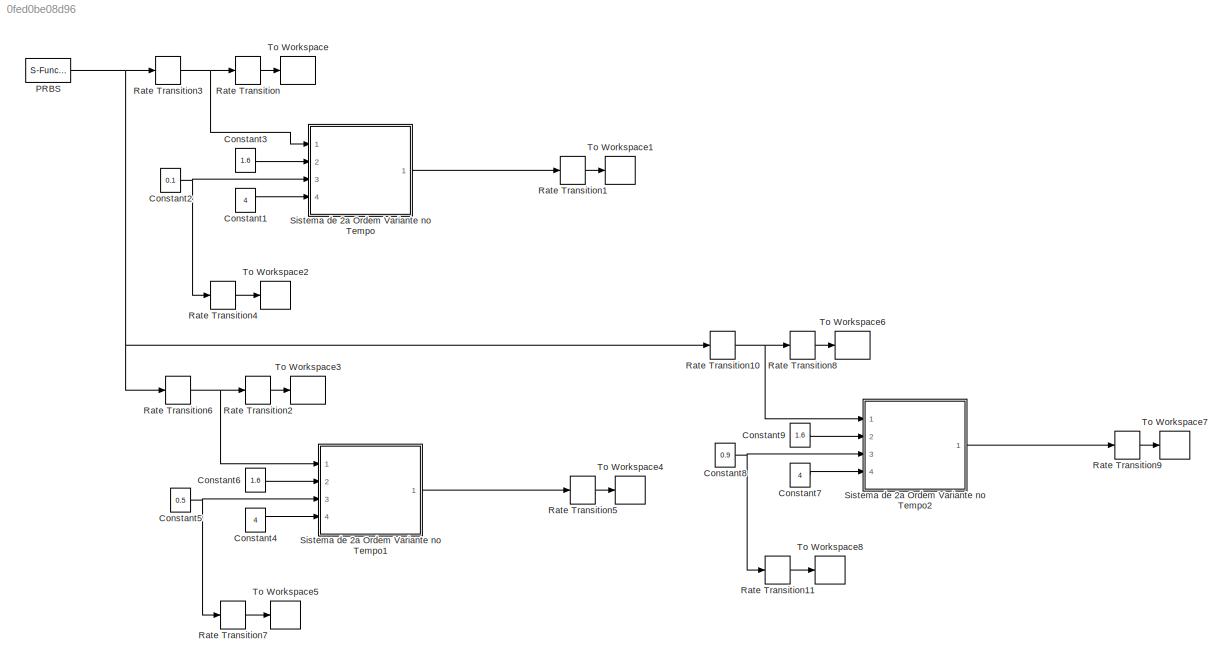
MODEL slx_0fed0be08d96
KIND model
CONFIG AbsTol = auto
CONFIG FixedStep = 0.005
CONFIG MaxStep = auto
CONFIG MinStep = auto
CONFIG RelTol = 1e-3
CONFIG SampleTimeConstraint = Unconstrained
CONFIG Solver = ode4
CONFIG SolverMode = Auto
CONFIG SolverName = ode4
CONFIG StartTime = 0.0
CONFIG StopTime = 120
BLOCK [Constant] Constant1
  Value = 4
BLOCK [Constant] Constant2
  Value = 0.1
BLOCK [Constant] Constant3
  Value = 1.6
BLOCK [Constant] Constant4
  Value = 4
BLOCK [Constant] Constant5
  Value = 0.5
BLOCK [Constant] Constant6
  Value = 1.6
BLOCK [Constant] Constant7
  Value = 4
BLOCK [Constant] Constant8
  Value = 0.9
BLOCK [Constant] Constant9
  Value = 1.6
BLOCK [S-Function] PRBS
  EnableBusSupport = off
  FunctionName = sf_prbs
  Parameters = K,N,Ts
  Ports = [0, 1]
  SFunctionDeploymentMode = off
BLOCK [RateTransition] Rate Transition
BLOCK [RateTransition] Rate Transition1
BLOCK [RateTransition] Rate Transition10
BLOCK [RateTransition] Rate Transition11
  X0 = 0.05
BLOCK [RateTransition] Rate Transition2
BLOCK [RateTransition] Rate Transition3
BLOCK [RateTransition] Rate Transition4
  X0 = 0.05
BLOCK [RateTransition] Rate Transition5
BLOCK [RateTransition] Rate Transition6
BLOCK [RateTransition] Rate Transition7
  X0 = 0.05
BLOCK [RateTransition] Rate Transition8
BLOCK [RateTransition] Rate Transition9
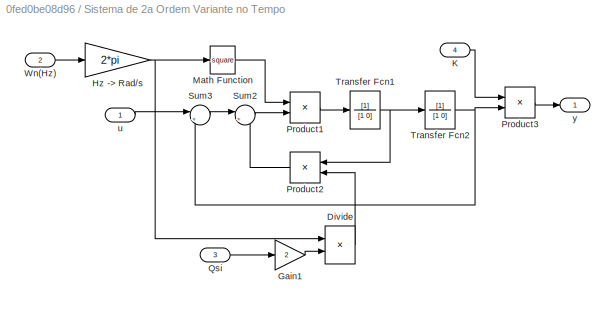
BLOCK [SubSystem] Sistema de 2a Ordem Variante no Tempo
  Ports = [4, 1]
  RequestExecContextInheritance = off
  Variant = off
BLOCK [Product] Sistema de 2a Ordem Variante no Tempo/Divide
  InputSameDT = off
  Inputs = /*
  OutDataTypeStr = Inherit: Inherit via internal rule
  Ports = [2, 1]
  RndMeth = Floor
  SaturateOnIntegerOverflow = off
BLOCK [Gain] Sistema de 2a Ordem Variante no Tempo/Gain1
  Gain = 2
  OutDataTypeStr = Inherit: Inherit via internal rule
  ParamDataTypeStr = Inherit: Inherit via internal rule
  SaturateOnIntegerOverflow = off
BLOCK [Gain] Sistema de 2a Ordem Variante no Tempo/Hz -> Rad//s
  Gain = 2*pi
  OutDataTypeStr = Inherit: Inherit via internal rule
  ParamDataTypeStr = Inherit: Inherit via internal rule
  SaturateOnIntegerOverflow = off
BLOCK [Inport] Sistema de 2a Ordem Variante no Tempo/K
  IconDisplay = Port number
  Port = 4
BLOCK [Math] Sistema de 2a Ordem Variante no Tempo/Math Function
  Operator = square
  Ports = [1, 1]
BLOCK [Product] Sistema de 2a Ordem Variante no Tempo/Product1
  InputSameDT = off
  OutDataTypeStr = Inherit: Inherit via internal rule
  Ports = [2, 1]
  SaturateOnIntegerOverflow = off
BLOCK [Product] Sistema de 2a Ordem Variante no Tempo/Product2
  InputSameDT = off
  OutDataTypeStr = Inherit: Inherit via internal rule
  Ports = [2, 1]
  SaturateOnIntegerOverflow = off
BLOCK [Product] Sistema de 2a Ordem Variante no Tempo/Product3
  InputSameDT = off
  OutDataTypeStr = Inherit: Inherit via internal rule
  Ports = [2, 1]
  SaturateOnIntegerOverflow = off
BLOCK [Inport] Sistema de 2a Ordem Variante no Tempo/Qsi
  IconDisplay = Port number
  Port = 3
BLOCK [Sum] Sistema de 2a Ordem Variante no Tempo/Sum2
  IconShape = round
  InputSameDT = off
  Inputs = |+-
  OutDataTypeStr = Inherit: Inherit via internal rule
  Ports = [2, 1]
  SaturateOnIntegerOverflow = off
BLOCK [Sum] Sistema de 2a Ordem Variante no Tempo/Sum3
  IconShape = round
  InputSameDT = off
  Inputs = |+-
  OutDataTypeStr = Inherit: Inherit via internal rule
  Ports = [2, 1]
  SaturateOnIntegerOverflow = off
BLOCK [TransferFcn] Sistema de 2a Ordem Variante no Tempo/Transfer Fcn1
  Denominator = [1 0]
BLOCK [TransferFcn] Sistema de 2a Ordem Variante no Tempo/Transfer Fcn2
  Denominator = [1 0]
BLOCK [Inport] Sistema de 2a Ordem Variante no Tempo/Wn(Hz)
  IconDisplay = Port number
  Port = 2
BLOCK [Inport] Sistema de 2a Ordem Variante no Tempo/u
  IconDisplay = Port number
BLOCK [Outport] Sistema de 2a Ordem Variante no Tempo/y
  IconDisplay = Port number
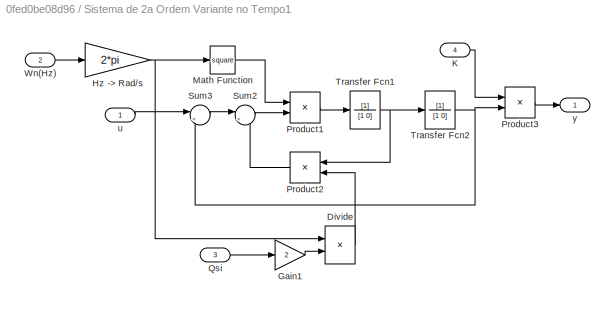
BLOCK [SubSystem] Sistema de 2a Ordem Variante no Tempo1
  Ports = [4, 1]
  RequestExecContextInheritance = off
  Variant = off
BLOCK [Product] Sistema de 2a Ordem Variante no Tempo1/Divide
  InputSameDT = off
  Inputs = /*
  OutDataTypeStr = Inherit: Inherit via internal rule
  Ports = [2, 1]
  RndMeth = Floor
  SaturateOnIntegerOverflow = off
BLOCK [Gain] Sistema de 2a Ordem Variante no Tempo1/Gain1
  Gain = 2
  OutDataTypeStr = Inherit: Inherit via internal rule
  ParamDataTypeStr = Inherit: Inherit via internal rule
  SaturateOnIntegerOverflow = off
BLOCK [Gain] Sistema de 2a Ordem Variante no Tempo1/Hz -> Rad//s
  Gain = 2*pi
  OutDataTypeStr = Inherit: Inherit via internal rule
  ParamDataTypeStr = Inherit: Inherit via internal rule
  SaturateOnIntegerOverflow = off
BLOCK [Inport] Sistema de 2a Ordem Variante no Tempo1/K
  IconDisplay = Port number
  Port = 4
BLOCK [Math] Sistema de 2a Ordem Variante no Tempo1/Math Function
  Operator = square
  Ports = [1, 1]
BLOCK [Product] Sistema de 2a Ordem Variante no Tempo1/Product1
  InputSameDT = off
  OutDataTypeStr = Inherit: Inherit via internal rule
  Ports = [2, 1]
  SaturateOnIntegerOverflow = off
BLOCK [Product] Sistema de 2a Ordem Variante no Tempo1/Product2
  InputSameDT = off
  OutDataTypeStr = Inherit: Inherit via internal rule
  Ports = [2, 1]
  SaturateOnIntegerOverflow = off
BLOCK [Product] Sistema de 2a Ordem Variante no Tempo1/Product3
  InputSameDT = off
  OutDataTypeStr = Inherit: Inherit via internal rule
  Ports = [2, 1]
  SaturateOnIntegerOverflow = off
BLOCK [Inport] Sistema de 2a Ordem Variante no Tempo1/Qsi
  IconDisplay = Port number
  Port = 3
BLOCK [Sum] Sistema de 2a Ordem Variante no Tempo1/Sum2
  IconShape = round
  InputSameDT = off
  Inputs = |+-
  OutDataTypeStr = Inherit: Inherit via internal rule
  Ports = [2, 1]
  SaturateOnIntegerOverflow = off
BLOCK [Sum] Sistema de 2a Ordem Variante no Tempo1/Sum3
  IconShape = round
  InputSameDT = off
  Inputs = |+-
  OutDataTypeStr = Inherit: Inherit via internal rule
  Ports = [2, 1]
  SaturateOnIntegerOverflow = off
BLOCK [TransferFcn] Sistema de 2a Ordem Variante no Tempo1/Transfer Fcn1
  Denominator = [1 0]
BLOCK [TransferFcn] Sistema de 2a Ordem Variante no Tempo1/Transfer Fcn2
  Denominator = [1 0]
BLOCK [Inport] Sistema de 2a Ordem Variante no Tempo1/Wn(Hz)
  IconDisplay = Port number
  Port = 2
BLOCK [Inport] Sistema de 2a Ordem Variante no Tempo1/u
  IconDisplay = Port number
BLOCK [Outport] Sistema de 2a Ordem Variante no Tempo1/y
  IconDisplay = Port number
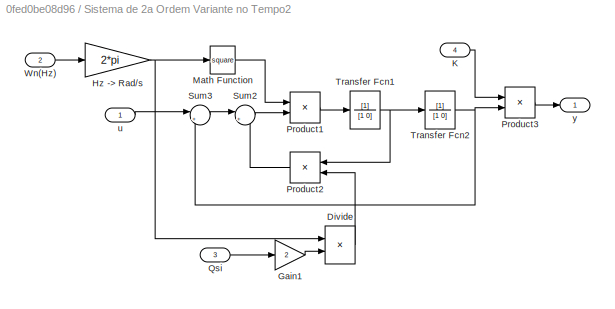
BLOCK [SubSystem] Sistema de 2a Ordem Variante no Tempo2
  Ports = [4, 1]
  RequestExecContextInheritance = off
  Variant = off
BLOCK [Product] Sistema de 2a Ordem Variante no Tempo2/Divide
  InputSameDT = off
  Inputs = /*
  OutDataTypeStr = Inherit: Inherit via internal rule
  Ports = [2, 1]
  RndMeth = Floor
  SaturateOnIntegerOverflow = off
BLOCK [Gain] Sistema de 2a Ordem Variante no Tempo2/Gain1
  Gain = 2
  OutDataTypeStr = Inherit: Inherit via internal rule
  ParamDataTypeStr = Inherit: Inherit via internal rule
  SaturateOnIntegerOverflow = off
BLOCK [Gain] Sistema de 2a Ordem Variante no Tempo2/Hz -> Rad//s
  Gain = 2*pi
  OutDataTypeStr = Inherit: Inherit via internal rule
  ParamDataTypeStr = Inherit: Inherit via internal rule
  SaturateOnIntegerOverflow = off
BLOCK [Inport] Sistema de 2a Ordem Variante no Tempo2/K
  IconDisplay = Port number
  Port = 4
BLOCK [Math] Sistema de 2a Ordem Variante no Tempo2/Math Function
  Operator = square
  Ports = [1, 1]
BLOCK [Product] Sistema de 2a Ordem Variante no Tempo2/Product1
  InputSameDT = off
  OutDataTypeStr = Inherit: Inherit via internal rule
  Ports = [2, 1]
  SaturateOnIntegerOverflow = off
BLOCK [Product] Sistema de 2a Ordem Variante no Tempo2/Product2
  InputSameDT = off
  OutDataTypeStr = Inherit: Inherit via internal rule
  Ports = [2, 1]
  SaturateOnIntegerOverflow = off
BLOCK [Product] Sistema de 2a Ordem Variante no Tempo2/Product3
  InputSameDT = off
  OutDataTypeStr = Inherit: Inherit via internal rule
  Ports = [2, 1]
  SaturateOnIntegerOverflow = off
BLOCK [Inport] Sistema de 2a Ordem Variante no Tempo2/Qsi
  IconDisplay = Port number
  Port = 3
BLOCK [Sum] Sistema de 2a Ordem Variante no Tempo2/Sum2
  IconShape = round
  InputSameDT = off
  Inputs = |+-
  OutDataTypeStr = Inherit: Inherit via internal rule
  Ports = [2, 1]
  SaturateOnIntegerOverflow = off
BLOCK [Sum] Sistema de 2a Ordem Variante no Tempo2/Sum3
  IconShape = round
  InputSameDT = off
  Inputs = |+-
  OutDataTypeStr = Inherit: Inherit via internal rule
  Ports = [2, 1]
  SaturateOnIntegerOverflow = off
BLOCK [TransferFcn] Sistema de 2a Ordem Variante no Tempo2/Transfer Fcn1
  Denominator = [1 0]
BLOCK [TransferFcn] Sistema de 2a Ordem Variante no Tempo2/Transfer Fcn2
  Denominator = [1 0]
BLOCK [Inport] Sistema de 2a Ordem Variante no Tempo2/Wn(Hz)
  IconDisplay = Port number
  Port = 2
BLOCK [Inport] Sistema de 2a Ordem Variante no Tempo2/u
  IconDisplay = Port number
BLOCK [Outport] Sistema de 2a Ordem Variante no Tempo2/y
  IconDisplay = Port number
BLOCK [ToWorkspace] To Workspace
  MaxDataPoints = inf
  Ports = [1]
  SampleTime = 0.05
  VariableName = umin
BLOCK [ToWorkspace] To Workspace1
  MaxDataPoints = inf
  Ports = [1]
  SampleTime = 0.05
  VariableName = ymin
BLOCK [ToWorkspace] To Workspace2
  MaxDataPoints = inf
  Ports = [1]
  SampleTime = 0.05
  VariableName = pmin
BLOCK [ToWorkspace] To Workspace3
  MaxDataPoints = inf
  Ports = [1]
  SampleTime = 0.05
  VariableName = umed
BLOCK [ToWorkspace] To Workspace4
  MaxDataPoints = inf
  Ports = [1]
  SampleTime = 0.05
  VariableName = ymed
BLOCK [ToWorkspace] To Workspace5
  MaxDataPoints = inf
  Ports = [1]
  SampleTime = 0.05
  VariableName = pmed
BLOCK [ToWorkspace] To Workspace6
  MaxDataPoints = inf
  Ports = [1]
  SampleTime = 0.05
  VariableName = umax
BLOCK [ToWorkspace] To Workspace7
  MaxDataPoints = inf
  Ports = [1]
  SampleTime = 0.05
  VariableName = ymax
BLOCK [ToWorkspace] To Workspace8
  MaxDataPoints = inf
  Ports = [1]
  SampleTime = 0.05
  VariableName = pmax
LINE Constant1:1 -> Sistema de 2a Ordem Variante no Tempo:4
NET Constant2:1 -> Rate Transition4:1, Sistema de 2a Ordem Variante no Tempo:3
LINE Constant3:1 -> Sistema de 2a Ordem Variante no Tempo:2
LINE Constant4:1 -> Sistema de 2a Ordem Variante no Tempo1:4
NET Constant5:1 -> Rate Transition7:1, Sistema de 2a Ordem Variante no Tempo1:3
LINE Constant6:1 -> Sistema de 2a Ordem Variante no Tempo1:2
LINE Constant7:1 -> Sistema de 2a Ordem Variante no Tempo2:4
NET Constant8:1 -> Rate Transition11:1, Sistema de 2a Ordem Variante no Tempo2:3
LINE Constant9:1 -> Sistema de 2a Ordem Variante no Tempo2:2
NET PRBS:1 -> Rate Transition10:1, Rate Transition3:1, Rate Transition6:1
NET Rate Transition10:1 -> Rate Transition8:1, Sistema de 2a Ordem Variante no Tempo2:1
LINE Rate Transition11:1 -> To Workspace8:1
LINE Rate Transition1:1 -> To Workspace1:1
LINE Rate Transition2:1 -> To Workspace3:1
NET Rate Transition3:1 -> Rate Transition:1, Sistema de 2a Ordem Variante no Tempo:1
LINE Rate Transition4:1 -> To Workspace2:1
LINE Rate Transition5:1 -> To Workspace4:1
NET Rate Transition6:1 -> Rate Transition2:1, Sistema de 2a Ordem Variante no Tempo1:1
LINE Rate Transition7:1 -> To Workspace5:1
LINE Rate Transition8:1 -> To Workspace6:1
LINE Rate Transition9:1 -> To Workspace7:1
LINE Rate Transition:1 -> To Workspace:1
LINE Sistema de 2a Ordem Variante no Tempo/Divide:1 -> Sistema de 2a Ordem Variante no Tempo/Product2:2
LINE Sistema de 2a Ordem Variante no Tempo/Gain1:1 -> Sistema de 2a Ordem Variante no Tempo/Divide:2
NET Sistema de 2a Ordem Variante no Tempo/Hz -> Rad//s:1 -> Sistema de 2a Ordem Variante no Tempo/Divide:1, Sistema de 2a Ordem Variante no Tempo/Math Function:1
LINE Sistema de 2a Ordem Variante no Tempo/K:1 -> Sistema de 2a Ordem Variante no Tempo/Product3:1
LINE Sistema de 2a Ordem Variante no Tempo/Math Function:1 -> Sistema de 2a Ordem Variante no Tempo/Product1:1
LINE Sistema de 2a Ordem Variante no Tempo/Product1:1 -> Sistema de 2a Ordem Variante no Tempo/Transfer Fcn1:1
LINE Sistema de 2a Ordem Variante no Tempo/Product2:1 -> Sistema de 2a Ordem Variante no Tempo/Sum2:2
LINE Sistema de 2a Ordem Variante no Tempo/Product3:1 -> Sistema de 2a Ordem Variante no Tempo/y:1
LINE Sistema de 2a Ordem Variante no Tempo/Qsi:1 -> Sistema de 2a Ordem Variante no Tempo/Gain1:1
LINE Sistema de 2a Ordem Variante no Tempo/Sum2:1 -> Sistema de 2a Ordem Variante no Tempo/Product1:2
LINE Sistema de 2a Ordem Variante no Tempo/Sum3:1 -> Sistema de 2a Ordem Variante no Tempo/Sum2:1
NET Sistema de 2a Ordem Variante no Tempo/Transfer Fcn1:1 -> Sistema de 2a Ordem Variante no Tempo/Product2:1, Sistema de 2a Ordem Variante no Tempo/Transfer Fcn2:1
NET Sistema de 2a Ordem Variante no Tempo/Transfer Fcn2:1 -> Sistema de 2a Ordem Variante no Tempo/Product3:2, Sistema de 2a Ordem Variante no Tempo/Sum3:2
LINE Sistema de 2a Ordem Variante no Tempo/Wn(Hz):1 -> Sistema de 2a Ordem Variante no Tempo/Hz -> Rad//s:1
LINE Sistema de 2a Ordem Variante no Tempo/u:1 -> Sistema de 2a Ordem Variante no Tempo/Sum3:1
LINE Sistema de 2a Ordem Variante no Tempo1/Divide:1 -> Sistema de 2a Ordem Variante no Tempo1/Product2:2
LINE Sistema de 2a Ordem Variante no Tempo1/Gain1:1 -> Sistema de 2a Ordem Variante no Tempo1/Divide:2
NET Sistema de 2a Ordem Variante no Tempo1/Hz -> Rad//s:1 -> Sistema de 2a Ordem Variante no Tempo1/Divide:1, Sistema de 2a Ordem Variante no Tempo1/Math Function:1
LINE Sistema de 2a Ordem Variante no Tempo1/K:1 -> Sistema de 2a Ordem Variante no Tempo1/Product3:1
LINE Sistema de 2a Ordem Variante no Tempo1/Math Function:1 -> Sistema de 2a Ordem Variante no Tempo1/Product1:1
LINE Sistema de 2a Ordem Variante no Tempo1/Product1:1 -> Sistema de 2a Ordem Variante no Tempo1/Transfer Fcn1:1
LINE Sistema de 2a Ordem Variante no Tempo1/Product2:1 -> Sistema de 2a Ordem Variante no Tempo1/Sum2:2
LINE Sistema de 2a Ordem Variante no Tempo1/Product3:1 -> Sistema de 2a Ordem Variante no Tempo1/y:1
LINE Sistema de 2a Ordem Variante no Tempo1/Qsi:1 -> Sistema de 2a Ordem Variante no Tempo1/Gain1:1
LINE Sistema de 2a Ordem Variante no Tempo1/Sum2:1 -> Sistema de 2a Ordem Variante no Tempo1/Product1:2
LINE Sistema de 2a Ordem Variante no Tempo1/Sum3:1 -> Sistema de 2a Ordem Variante no Tempo1/Sum2:1
NET Sistema de 2a Ordem Variante no Tempo1/Transfer Fcn1:1 -> Sistema de 2a Ordem Variante no Tempo1/Product2:1, Sistema de 2a Ordem Variante no Tempo1/Transfer Fcn2:1
NET Sistema de 2a Ordem Variante no Tempo1/Transfer Fcn2:1 -> Sistema de 2a Ordem Variante no Tempo1/Product3:2, Sistema de 2a Ordem Variante no Tempo1/Sum3:2
LINE Sistema de 2a Ordem Variante no Tempo1/Wn(Hz):1 -> Sistema de 2a Ordem Variante no Tempo1/Hz -> Rad//s:1
LINE Sistema de 2a Ordem Variante no Tempo1/u:1 -> Sistema de 2a Ordem Variante no Tempo1/Sum3:1
LINE Sistema de 2a Ordem Variante no Tempo1:1 -> Rate Transition5:1
LINE Sistema de 2a Ordem Variante no Tempo2/Divide:1 -> Sistema de 2a Ordem Variante no Tempo2/Product2:2
LINE Sistema de 2a Ordem Variante no Tempo2/Gain1:1 -> Sistema de 2a Ordem Variante no Tempo2/Divide:2
NET Sistema de 2a Ordem Variante no Tempo2/Hz -> Rad//s:1 -> Sistema de 2a Ordem Variante no Tempo2/Divide:1, Sistema de 2a Ordem Variante no Tempo2/Math Function:1
LINE Sistema de 2a Ordem Variante no Tempo2/K:1 -> Sistema de 2a Ordem Variante no Tempo2/Product3:1
LINE Sistema de 2a Ordem Variante no Tempo2/Math Function:1 -> Sistema de 2a Ordem Variante no Tempo2/Product1:1
LINE Sistema de 2a Ordem Variante no Tempo2/Product1:1 -> Sistema de 2a Ordem Variante no Tempo2/Transfer Fcn1:1
LINE Sistema de 2a Ordem Variante no Tempo2/Product2:1 -> Sistema de 2a Ordem Variante no Tempo2/Sum2:2
LINE Sistema de 2a Ordem Variante no Tempo2/Product3:1 -> Sistema de 2a Ordem Variante no Tempo2/y:1
LINE Sistema de 2a Ordem Variante no Tempo2/Qsi:1 -> Sistema de 2a Ordem Variante no Tempo2/Gain1:1
LINE Sistema de 2a Ordem Variante no Tempo2/Sum2:1 -> Sistema de 2a Ordem Variante no Tempo2/Product1:2
LINE Sistema de 2a Ordem Variante no Tempo2/Sum3:1 -> Sistema de 2a Ordem Variante no Tempo2/Sum2:1
NET Sistema de 2a Ordem Variante no Tempo2/Transfer Fcn1:1 -> Sistema de 2a Ordem Variante no Tempo2/Product2:1, Sistema de 2a Ordem Variante no Tempo2/Transfer Fcn2:1
NET Sistema de 2a Ordem Variante no Tempo2/Transfer Fcn2:1 -> Sistema de 2a Ordem Variante no Tempo2/Product3:2, Sistema de 2a Ordem Variante no Tempo2/Sum3:2
LINE Sistema de 2a Ordem Variante no Tempo2/Wn(Hz):1 -> Sistema de 2a Ordem Variante no Tempo2/Hz -> Rad//s:1
LINE Sistema de 2a Ordem Variante no Tempo2/u:1 -> Sistema de 2a Ordem Variante no Tempo2/Sum3:1
LINE Sistema de 2a Ordem Variante no Tempo2:1 -> Rate Transition9:1
LINE Sistema de 2a Ordem Variante no Tempo:1 -> Rate Transition1:1
note: NET lines group one-source signal fan-out (src -> all destinations, sorted); 1:1 wires keep LINE
